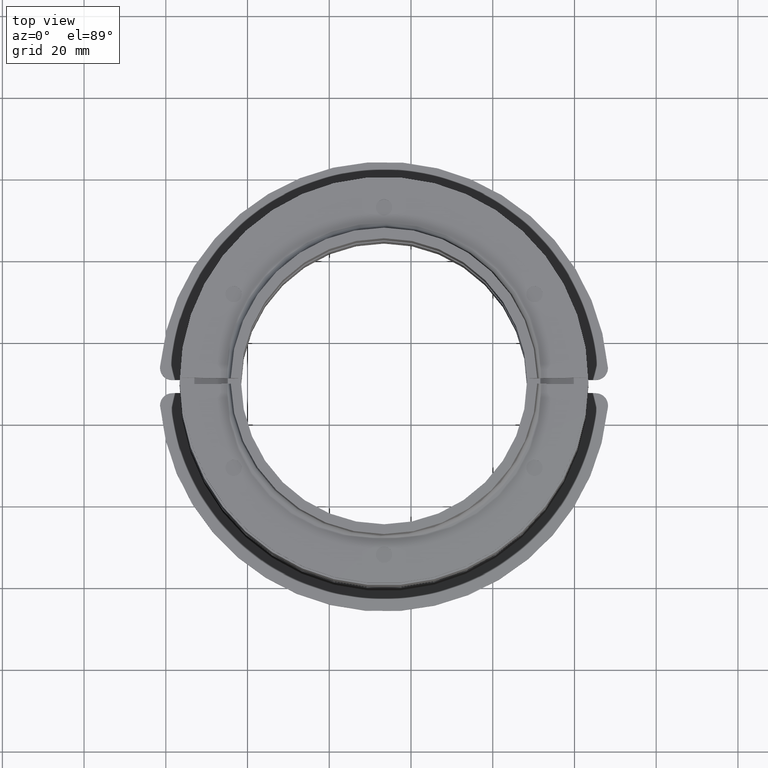
[diagram: clean part render]
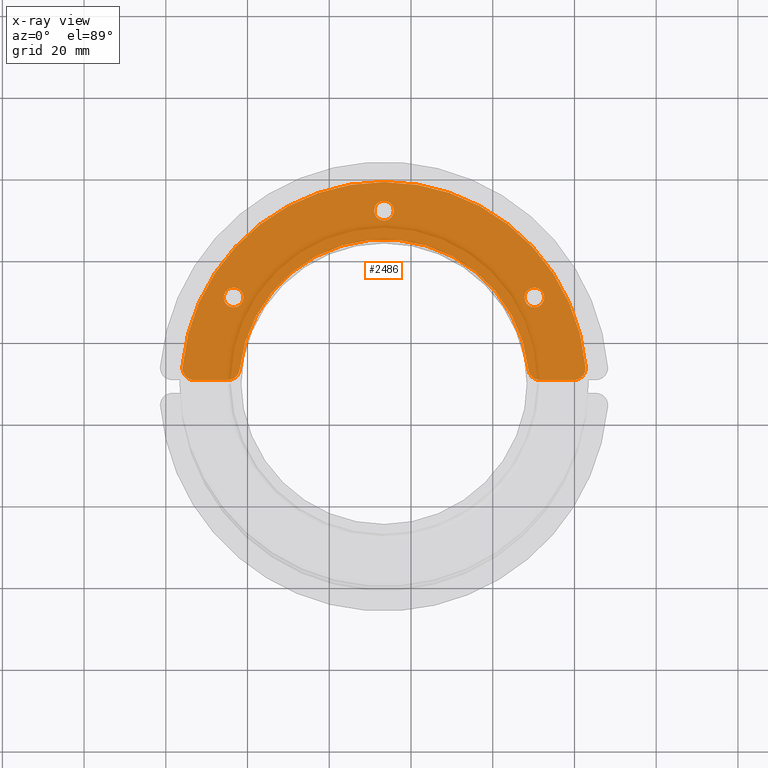
[diagram: x-ray — body ghosted, one internal face saturated and labeled with its STEP entity id]
A machine part, top view, then the same camera in x-ray: the body is ghosted and one INTERNAL B-rep face — a face not visible from any outside direction — is saturated and labeled: STEP entity #2486.
In plain terms, the highlighted planar face has unit normal (0, -0, 1).
Its self-contained STEP definition (entity closure, byte-faithful):
#2047=CARTESIAN_POINT('',(-1.910515691336315,16.749999999999659,-1.250000000000000));
#2048=VERTEX_POINT('',#2047);
#2064=CARTESIAN_POINT('',(2.889484308663691,16.749999999999659,-1.250000000000000));
#2065=VERTEX_POINT('',#2064);
#2072=CARTESIAN_POINT('',(0.489484308663691,16.749999999999659,-1.250000000000000));
#2073=DIRECTION('',(0.0,0.0,1.0));
#2074=DIRECTION('',(-1.0,0.0,0.0));
#2075=AXIS2_PLACEMENT_3D('',#2072,#2073,#2074);
#2076=CIRCLE('',#2075,2.400000000000000);
#2077=EDGE_CURVE('',#2048,#2065,#2076,.T.);
#2089=CARTESIAN_POINT('',(34.895563969502348,-4.500000000000355,-1.250000000000000));
#2090=VERTEX_POINT('',#2089);
#2106=CARTESIAN_POINT('',(39.695563969502352,-4.500000000000355,-1.250000000000000));
#2107=VERTEX_POINT('',#2106);
#2114=CARTESIAN_POINT('',(37.295563969502354,-4.500000000000355,-1.250000000000000));
#2115=DIRECTION('',(0.0,0.0,1.0));
#2116=DIRECTION('',(-1.0,0.0,0.0));
#2117=AXIS2_PLACEMENT_3D('',#2114,#2115,#2116);
#2118=CIRCLE('',#2117,2.400000000000000);
#2119=EDGE_CURVE('',#2090,#2107,#2118,.T.);
#2131=CARTESIAN_POINT('',(-38.716595352174949,-4.500000000000327,-1.250000000000000));
#2132=VERTEX_POINT('',#2131);
#2148=CARTESIAN_POINT('',(-33.916595352174944,-4.500000000000327,-1.250000000000000));
#2149=VERTEX_POINT('',#2148);
#2156=CARTESIAN_POINT('',(-36.316595352174943,-4.500000000000327,-1.250000000000000));
#2157=DIRECTION('',(0.0,0.0,1.0));
#2158=DIRECTION('',(-1.0,0.0,0.0));
#2159=AXIS2_PLACEMENT_3D('',#2156,#2157,#2158);
#2160=CIRCLE('',#2159,2.400000000000000);
#2161=EDGE_CURVE('',#2132,#2149,#2160,.T.);
#2171=CARTESIAN_POINT('',(49.027799747498911,-23.778029394710018,-1.250000000000000));
#2172=VERTEX_POINT('',#2171);
#2181=CARTESIAN_POINT('',(49.806001689521828,-21.491935483871323,-1.250000000000000));
#2182=VERTEX_POINT('',#2181);
#2183=CARTESIAN_POINT('',(46.817121848257699,-21.750000000000352,-1.250000000000000));
#2184=DIRECTION('',(0.0,0.0,1.000000000000000));
#2185=DIRECTION('',(0.736892633080405,-0.676009798236555,0.0));
#2186=AXIS2_PLACEMENT_3D('',#2183,#2184,#2185);
#2187=CIRCLE('',#2186,2.999999999999999);
#2188=EDGE_CURVE('',#2172,#2182,#2187,.T.);
#2213=CARTESIAN_POINT('',(36.773027827077101,-23.978796192462195,-1.250000000000000));
#2214=VERTEX_POINT('',#2213);
#2223=CARTESIAN_POINT('',(38.781128305755274,-24.750000000000355,-1.250000000000000));
#2224=VERTEX_POINT('',#2223);
#2225=CARTESIAN_POINT('',(38.781128305755274,-21.750000000000334,-1.250000000000000));
#2226=DIRECTION('',(0.0,0.0,1.000000000000000));
#2227=DIRECTION('',(-0.669366826226059,-0.742932064153953,0.0));
#2228=AXIS2_PLACEMENT_3D('',#2225,#2226,#2227);
#2229=CIRCLE('',#2228,3.000000000000000);
#2230=EDGE_CURVE('',#2214,#2224,#2229,.T.);
#2255=CARTESIAN_POINT('',(-35.794059209749719,-23.978796192462202,-1.250000000000000));
#2256=VERTEX_POINT('',#2255);
#2265=CARTESIAN_POINT('',(-34.818395221122060,-22.061688311688652,-1.250000000000000));
#2266=VERTEX_POINT('',#2265);
#2267=CARTESIAN_POINT('',(-37.802159688427892,-21.750000000000341,-1.250000000000000));
#2268=DIRECTION('',(0.0,0.0,1.000000000000000));
#2269=DIRECTION('',(0.669366826226059,-0.742932064153953,0.0));
#2270=AXIS2_PLACEMENT_3D('',#2267,#2268,#2269);
#2271=CIRCLE('',#2270,3.000000000000000);
#2272=EDGE_CURVE('',#2256,#2266,#2271,.T.);
#2297=CARTESIAN_POINT('',(-48.048831130171529,-23.778029394710011,-1.250000000000000));
#2298=VERTEX_POINT('',#2297);
#2307=CARTESIAN_POINT('',(-45.838153230930317,-24.750000000000341,-1.250000000000000));
#2308=VERTEX_POINT('',#2307);
#2309=CARTESIAN_POINT('',(-45.838153230930317,-21.750000000000341,-1.250000000000000));
#2310=DIRECTION('',(0.0,0.0,1.000000000000000));
#2311=DIRECTION('',(-0.736892633080404,-0.676009798236556,0.0));
#2312=AXIS2_PLACEMENT_3D('',#2309,#2310,#2311);
#2313=CIRCLE('',#2312,3.000000000000000);
#2314=EDGE_CURVE('',#2298,#2308,#2313,.T.);
#2349=CARTESIAN_POINT('',(-48.827033072194446,-21.491935483871309,-1.250000000000000));
#2350=VERTEX_POINT('',#2349);
#2357=CARTESIAN_POINT('',(-45.838153230930317,-21.750000000000341,-1.250000000000000));
#2358=DIRECTION('',(0.0,0.0,1.000000000000000));
#2359=DIRECTION('',(-0.736892633080404,-0.676009798236556,0.0));
#2360=AXIS2_PLACEMENT_3D('',#2357,#2358,#2359);
#2361=CIRCLE('',#2360,3.000000000000000);
#2362=EDGE_CURVE('',#2350,#2298,#2361,.T.);
#2373=CARTESIAN_POINT('',(-37.802159688427892,-24.750000000000341,-1.250000000000000));
#2374=VERTEX_POINT('',#2373);
#2375=CARTESIAN_POINT('',(-37.802159688427892,-24.750000000000341,-1.250000000000000));
#2376=DIRECTION('',(-1.0,0.0,0.0));
#2377=VECTOR('',#2376,8.035993542502425);
#2378=LINE('',#2375,#2377);
#2379=EDGE_CURVE('',#2374,#2308,#2378,.T.);
#2398=CARTESIAN_POINT('',(0.489484308663691,-2.583269461526552,-1.250000000000000));
#2399=DIRECTION('',(0.0,0.0,1.0));
#2400=DIRECTION('',(1.0,0.0,0.0));
#2401=AXIS2_PLACEMENT_3D('',#2398,#2399,#2400);
#2402=PLANE('',#2401);
#2403=ORIENTED_EDGE('',*,*,#2362,.F.);
#2404=CARTESIAN_POINT('',(0.489484308663691,-25.750000000000327,-1.250000000000000));
#2405=DIRECTION('',(0.0,0.0,-1.0));
#2406=DIRECTION('',(-1.0,0.0,0.0));
#2407=AXIS2_PLACEMENT_3D('',#2404,#2405,#2406);
#2408=CIRCLE('',#2407,49.500000000000000);
#2409=EDGE_CURVE('',#2350,#2182,#2408,.T.);
#2410=ORIENTED_EDGE('',*,*,#2409,.T.);
#2411=ORIENTED_EDGE('',*,*,#2188,.F.);
#2412=CARTESIAN_POINT('',(46.817121848257699,-24.750000000000355,-1.250000000000000));
#2413=VERTEX_POINT('',#2412);
#2414=CARTESIAN_POINT('',(46.817121848257699,-21.750000000000352,-1.250000000000000));
#2415=DIRECTION('',(0.0,0.0,1.000000000000000));
#2416=DIRECTION('',(0.736892633080405,-0.676009798236555,0.0));
#2417=AXIS2_PLACEMENT_3D('',#2414,#2415,#2416);
#2418=CIRCLE('',#2417,2.999999999999999);
#2419=EDGE_CURVE('',#2413,#2172,#2418,.T.);
#2420=ORIENTED_EDGE('',*,*,#2419,.F.);
#2421=CARTESIAN_POINT('',(46.817121848257699,-24.750000000000355,-1.250000000000000));
#2422=DIRECTION('',(-1.0,0.0,0.0));
#2423=VECTOR('',#2422,8.035993542502425);
#2424=LINE('',#2421,#2423);
#2425=EDGE_CURVE('',#2413,#2224,#2424,.T.);
#2426=ORIENTED_EDGE('',*,*,#2425,.T.);
#2427=ORIENTED_EDGE('',*,*,#2230,.F.);
#2428=CARTESIAN_POINT('',(35.797363838449442,-22.061688311688648,-1.250000000000000));
#2429=VERTEX_POINT('',#2428);
#2430=CARTESIAN_POINT('',(38.781128305755274,-21.750000000000334,-1.250000000000000));
#2431=DIRECTION('',(0.0,0.0,1.000000000000000));
#2432=DIRECTION('',(-0.669366826226059,-0.742932064153953,0.0));
#2433=AXIS2_PLACEMENT_3D('',#2430,#2431,#2432);
#2434=CIRCLE('',#2433,3.000000000000000);
#2435=EDGE_CURVE('',#2429,#2214,#2434,.T.);
#2436=ORIENTED_EDGE('',*,*,#2435,.F.);
#2437=CARTESIAN_POINT('',(0.489484308663691,-25.750000000000327,-1.250000000000000));
#2438=DIRECTION('',(0.0,0.0,1.0));
#2439=DIRECTION('',(-1.0,0.0,0.0));
#2440=AXIS2_PLACEMENT_3D('',#2437,#2438,#2439);
#2441=CIRCLE('',#2440,35.500000000000000);
#2442=EDGE_CURVE('',#2429,#2266,#2441,.T.);
#2443=ORIENTED_EDGE('',*,*,#2442,.T.);
#2444=ORIENTED_EDGE('',*,*,#2272,.F.);
#2445=CARTESIAN_POINT('',(-37.802159688427892,-21.750000000000341,-1.250000000000000));
#2446=DIRECTION('',(0.0,0.0,1.000000000000000));
#2447=DIRECTION('',(0.669366826226059,-0.742932064153953,0.0));
#2448=AXIS2_PLACEMENT_3D('',#2445,#2446,#2447);
#2449=CIRCLE('',#2448,3.000000000000000);
#2450=EDGE_CURVE('',#2374,#2256,#2449,.T.);
#2451=ORIENTED_EDGE('',*,*,#2450,.F.);
#2452=ORIENTED_EDGE('',*,*,#2379,.T.);
#2453=ORIENTED_EDGE('',*,*,#2314,.F.);
#2454=EDGE_LOOP('',(#2403,#2410,#2411,#2420,#2426,#2427,#2436,#2443,#2444,#2451,#2452,#2453));
#2455=FACE_OUTER_BOUND('',#2454,.T.);
#2456=ORIENTED_EDGE('',*,*,#2161,.T.);
#2457=CARTESIAN_POINT('',(-36.316595352174943,-4.500000000000327,-1.250000000000000));
#2458=DIRECTION('',(0.0,0.0,1.0));
#2459=DIRECTION('',(-1.0,0.0,0.0));
#2460=AXIS2_PLACEMENT_3D('',#2457,#2458,#2459);
#2461=CIRCLE('',#2460,2.400000000000000);
#2462=EDGE_CURVE('',#2149,#2132,#2461,.T.);
#2463=ORIENTED_EDGE('',*,*,#2462,.T.);
#2464=EDGE_LOOP('',(#2456,#2463));
#2465=FACE_BOUND('',#2464,.T.);
#2466=ORIENTED_EDGE('',*,*,#2119,.T.);
#2467=CARTESIAN_POINT('',(37.295563969502354,-4.500000000000355,-1.250000000000000));
#2468=DIRECTION('',(0.0,0.0,1.0));
#2469=DIRECTION('',(-1.0,0.0,0.0));
#2470=AXIS2_PLACEMENT_3D('',#2467,#2468,#2469);
#2471=CIRCLE('',#2470,2.400000000000000);
#2472=EDGE_CURVE('',#2107,#2090,#2471,.T.);
#2473=ORIENTED_EDGE('',*,*,#2472,.T.);
#2474=EDGE_LOOP('',(#2466,#2473));
#2475=FACE_BOUND('',#2474,.T.);
#2476=ORIENTED_EDGE('',*,*,#2077,.T.);
#2477=CARTESIAN_POINT('',(0.489484308663691,16.749999999999659,-1.250000000000000));
#2478=DIRECTION('',(0.0,0.0,1.0));
#2479=DIRECTION('',(-1.0,0.0,0.0));
#2480=AXIS2_PLACEMENT_3D('',#2477,#2478,#2479);
#2481=CIRCLE('',#2480,2.400000000000000);
#2482=EDGE_CURVE('',#2065,#2048,#2481,.T.);
#2483=ORIENTED_EDGE('',*,*,#2482,.T.);
#2484=EDGE_LOOP('',(#2476,#2483));
#2485=FACE_BOUND('',#2484,.T.);
#2486=ADVANCED_FACE('',(#2455,#2465,#2475,#2485),#2402,.F.);